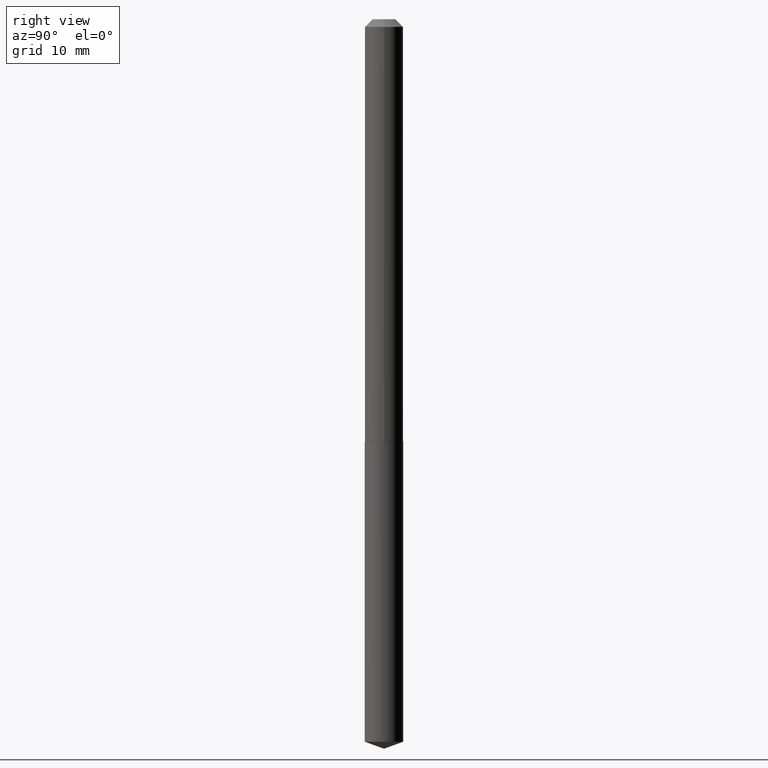
[diagram: clean part render]
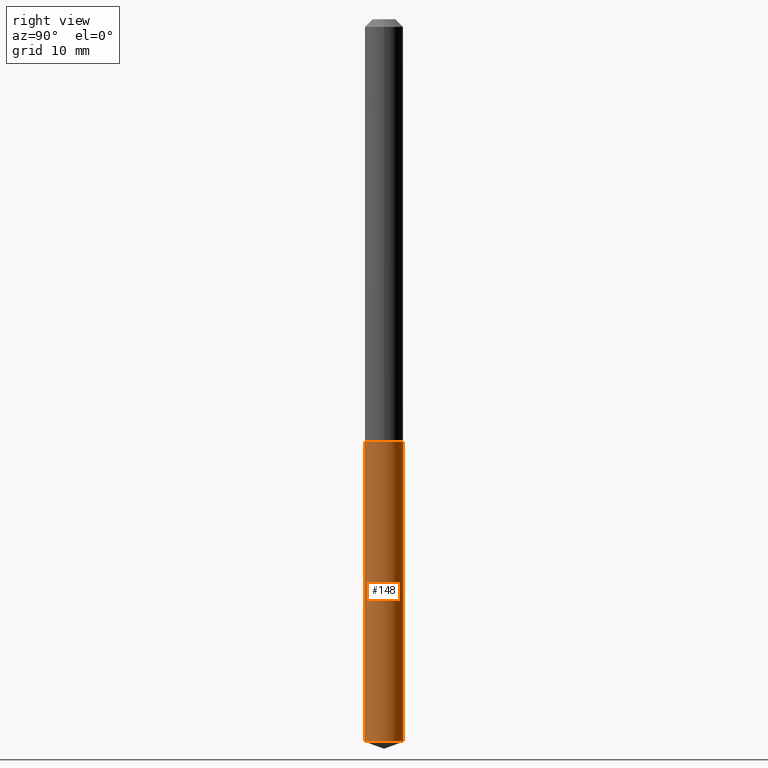
[diagram: same view with one face highlighted and labeled with its STEP entity id]
A machine part, right view. The second image highlights one B-rep face of the part: STEP entity #148.
In plain terms, the highlighted cylindrical surface (edge-blend (fillet) strip) has radius 2.0002 mm, axis along (-0, 0, 1).
Its self-contained STEP definition (entity closure, byte-faithful):
#19 = LINE ( 'NONE', #100, #66 ) ;
#26 = EDGE_CURVE ( 'NONE', #299, #32, #363, .T. ) ;
#28 = VERTEX_POINT ( 'NONE', #159 ) ;
#32 = VERTEX_POINT ( 'NONE', #317 ) ;
#34 = ORIENTED_EDGE ( 'NONE', *, *, #318, .F. ) ;
#42 = DIRECTION ( 'NONE',  ( -2.439100213155441770E-29, 3.500601526539472950E-15, 1.000000000000000000 ) ) ;
#63 = CARTESIAN_POINT ( 'NONE',  ( 4.236285612954512392E-29, -6.048293123277981078E-15, -1.732299999999999951 ) ) ;
#66 = VECTOR ( 'NONE', #223, 39.37007874015748143 ) ;
#83 = EDGE_LOOP ( 'NONE', ( #233, #335, #144, #34 ) ) ;
#91 = CIRCLE ( 'NONE', #271, 0.07874999999999997280 ) ;
#100 = CARTESIAN_POINT ( 'NONE',  ( -5.499083108677509444E-16, -0.07875000000000602352, -1.732299999999999729 ) ) ;
#107 = CARTESIAN_POINT ( 'NONE',  ( 7.239152971254241713E-29, -1.035801438924454465E-14, -2.963437344051537359 ) ) ;
#108 = CARTESIAN_POINT ( 'NONE',  ( -5.499083108677209677E-16, -0.07875000000001036726, -2.963437344051536915 ) ) ;
#127 = CARTESIAN_POINT ( 'NONE',  ( 5.595524044111210058E-16, 0.07874999999999393596, -1.732300000000000173 ) ) ;
#144 = ORIENTED_EDGE ( 'NONE', *, *, #298, .F. ) ;
#148 = ADVANCED_FACE ( 'NONE', ( #181 ), #338, .T. ) ;
#150 = AXIS2_PLACEMENT_3D ( 'NONE', #63, #276, #248 ) ;
#159 = CARTESIAN_POINT ( 'NONE',  ( 5.595524044111512783E-16, 0.07874999999999393596, -1.732300000000000173 ) ) ;
#170 = VERTEX_POINT ( 'NONE', #366 ) ;
#181 = FACE_OUTER_BOUND ( 'NONE', #83, .T. ) ;
#223 = DIRECTION ( 'NONE',  ( -2.439100213155441770E-29, 3.500601526539472556E-15, 1.000000000000000000 ) ) ;
#232 = DIRECTION ( 'NONE',  ( -2.439100213155441770E-29, 3.500601526539472950E-15, 1.000000000000000000 ) ) ;
#233 = ORIENTED_EDGE ( 'NONE', *, *, #26, .T. ) ;
#248 = DIRECTION ( 'NONE',  ( -6.982962677686265922E-15, -1.000000000000000000, 3.469013325287954477E-15 ) ) ;
#262 = CARTESIAN_POINT ( 'NONE',  ( 4.236285612954512392E-29, -6.048293123277981078E-15, -1.732299999999999951 ) ) ;
#271 = AXIS2_PLACEMENT_3D ( 'NONE', #262, #232, #288 ) ;
#276 = DIRECTION ( 'NONE',  ( -2.439100213155441770E-29, 3.500601526539472950E-15, 1.000000000000000000 ) ) ;
#288 = DIRECTION ( 'NONE',  ( -6.982962677686265922E-15, -1.000000000000000000, 3.469013325287954477E-15 ) ) ;
#292 = DIRECTION ( 'NONE',  ( -6.982962677686264344E-15, -1.000000000000000000, 6.938026650575906587E-15 ) ) ;
#298 = EDGE_CURVE ( 'NONE', #170, #28, #91, .T. ) ;
#299 = VERTEX_POINT ( 'NONE', #108 ) ;
#307 = EDGE_CURVE ( 'NONE', #32, #28, #347, .T. ) ;
#315 = VECTOR ( 'NONE', #373, 39.37007874015748143 ) ;
#317 = CARTESIAN_POINT ( 'NONE',  ( 5.595524044111512783E-16, 0.07874999999998963385, -2.963437344051538247 ) ) ;
#318 = EDGE_CURVE ( 'NONE', #299, #170, #19, .T. ) ;
#324 = AXIS2_PLACEMENT_3D ( 'NONE', #107, #42, #292 ) ;
#335 = ORIENTED_EDGE ( 'NONE', *, *, #307, .T. ) ;
#338 = CYLINDRICAL_SURFACE ( 'NONE', #150, 0.07874999999999997280 ) ;
#347 = LINE ( 'NONE', #127, #315 ) ;
#363 = CIRCLE ( 'NONE', #324, 0.07875000000000000056 ) ;
#366 = CARTESIAN_POINT ( 'NONE',  ( -5.499083108677509444E-16, -0.07875000000000602352, -1.732299999999999729 ) ) ;
#373 = DIRECTION ( 'NONE',  ( -2.439100213155441770E-29, 3.500601526539472556E-15, 1.000000000000000000 ) ) ;